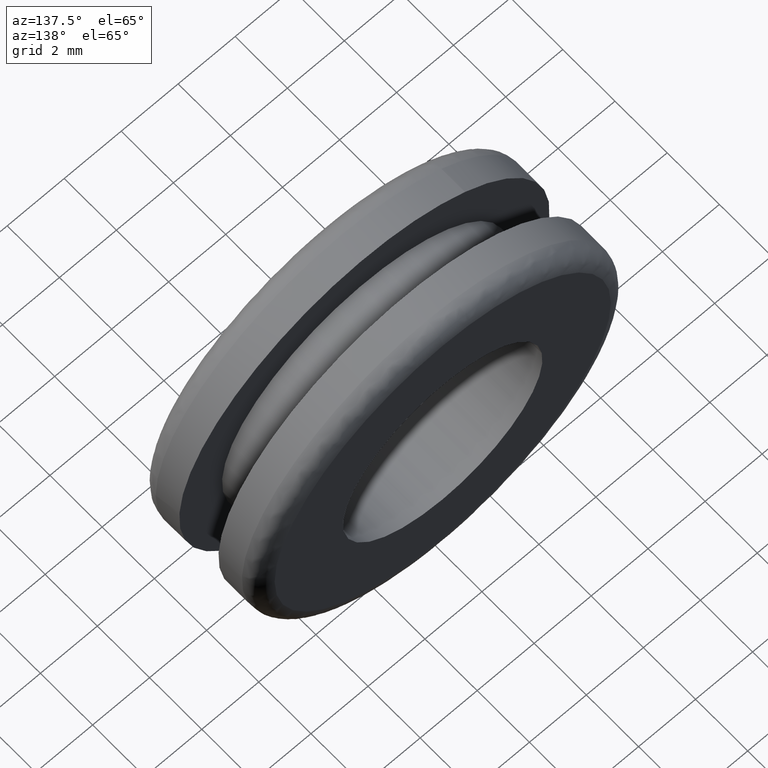
[diagram: clean part render]
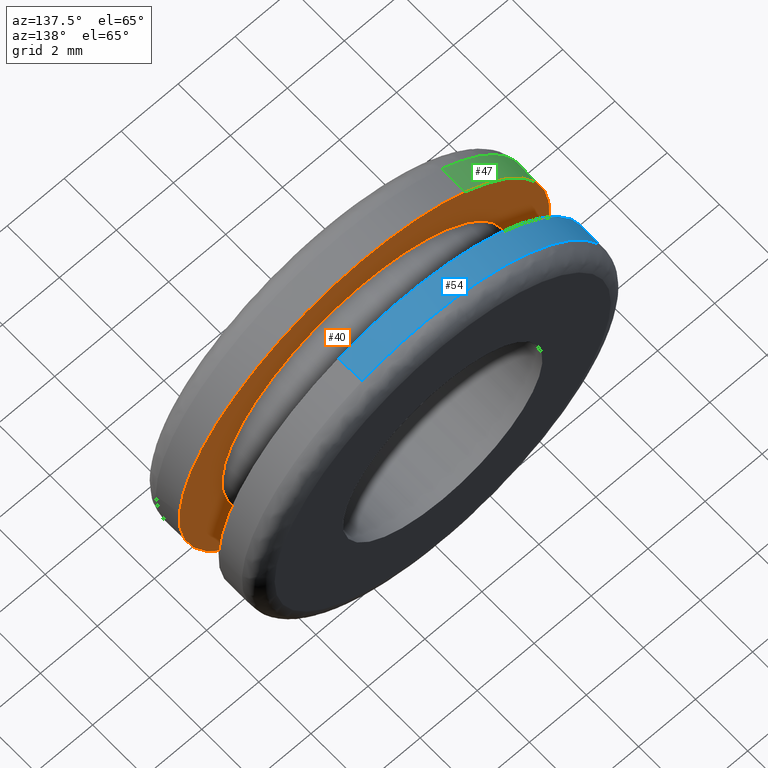
[diagram: same view with three faces highlighted in distinct colors, each labeled with its STEP entity id]
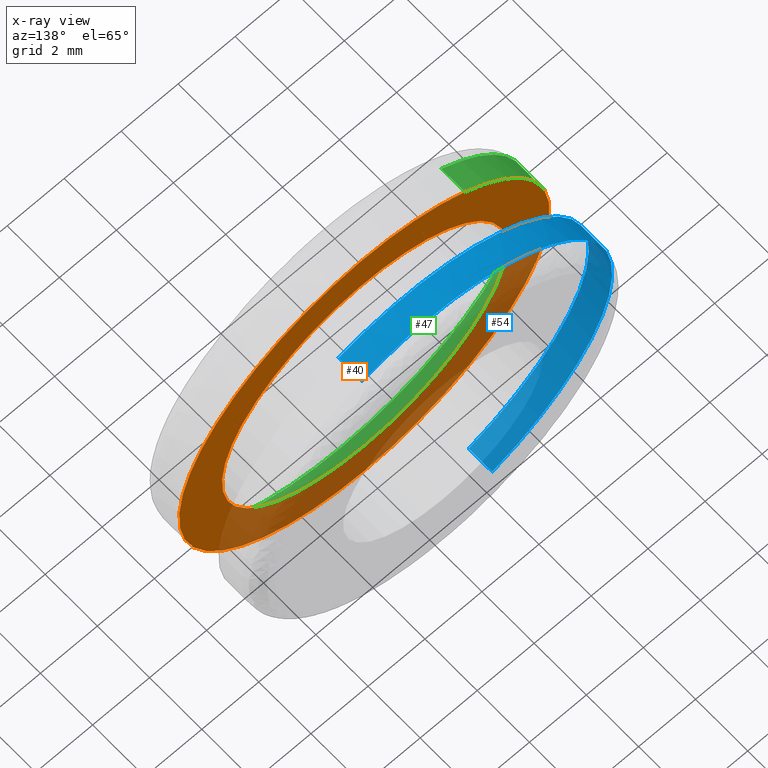
[diagram: x-ray of the same camera — body ghosted, the three highlighted faces saturated]
A machine part, auxiliary view with three faces highlighted in distinct colors.
The next image is the same camera in x-ray (body ghosted, the three faces saturated) — at least one of them is partly hidden behind the body in this view.
Their STEP definitions:

[orange] entity #40 — the highlighted planar face has unit normal (0, -1, 0).
#40=ADVANCED_FACE('',(#57,#58),#56,.F.);
#56=PLANE('',#223);
#57=FACE_OUTER_BOUND('',#224,.T.);
#58=FACE_BOUND('',#225,.T.);
#220=CARTESIAN_POINT('',(-1.35099962990E+001,1.50000000000E+000,1.49500000000E+001));
#221=DIRECTION('',(0.00000000000E+000,-1.00000000000E+000,0.00000000000E+000));
#222=DIRECTION('',(0.00000000000E+000,0.00000000000E+000,-1.00000000000E+000));
#223=AXIS2_PLACEMENT_3D('',#220,#221,#222);
#224=EDGE_LOOP('',(#388,#389,#390));
#225=EDGE_LOOP('',(#391,#392,#393));
#388=ORIENTED_EDGE('',*,*,#486,.F.);
#389=ORIENTED_EDGE('',*,*,#487,.F.);
#390=ORIENTED_EDGE('',*,*,#488,.F.);
#391=ORIENTED_EDGE('',*,*,#489,.T.);
#392=ORIENTED_EDGE('',*,*,#490,.T.);
#393=ORIENTED_EDGE('',*,*,#491,.T.);
#486=EDGE_CURVE('',#535,#536,#537,.T.);
#487=EDGE_CURVE('',#543,#535,#544,.T.);
#488=EDGE_CURVE('',#536,#543,#550,.T.);
#489=EDGE_CURVE('',#556,#557,#558,.T.);
#490=EDGE_CURVE('',#557,#564,#565,.T.);
#491=EDGE_CURVE('',#564,#556,#571,.T.);
#535=VERTEX_POINT('',#866);
#536=VERTEX_POINT('',#867);
#537=CIRCLE('',#871,6.50000000000E+000);
#543=VERTEX_POINT('',#872);
#544=CIRCLE('',#876,6.50000000000E+000);
#550=CIRCLE('',#880,6.50000000000E+000);
#556=VERTEX_POINT('',#881);
#557=VERTEX_POINT('',#882);
#558=CIRCLE('',#886,5.00000000000E+000);
#564=VERTEX_POINT('',#887);
#565=CIRCLE('',#891,5.00000000000E+000);
#571=CIRCLE('',#895,5.00000000000E+000);
#866=CARTESIAN_POINT('',(-3.52773755077E+000,1.50000000000E+000,5.45940177793E+000));
#867=CARTESIAN_POINT('',(-4.44089209850E-016,1.50000000000E+000,-6.50000000000E+000));
#868=CARTESIAN_POINT('',(1.55431223448E-015,1.50000000000E+000,3.44169137634E-015));
#869=DIRECTION('',(-2.78962807262E-017,-1.00000000000E+000,-1.80259221422E-017));
#870=DIRECTION('',(7.77156117238E-016,1.80259221422E-017,-1.00000000000E+000));
#871=AXIS2_PLACEMENT_3D('',#868,#869,#870);
#872=CARTESIAN_POINT('',(3.52938131540E+000,1.50000000000E+000,-5.45833926487E+000));
#873=CARTESIAN_POINT('',(1.55431223448E-015,1.50000000000E+000,3.44169137634E-015));
#874=DIRECTION('',(-2.78962807262E-017,-1.00000000000E+000,-1.80259221422E-017));
#875=DIRECTION('',(7.77156117238E-016,1.80259221422E-017,-1.00000000000E+000));
#876=AXIS2_PLACEMENT_3D('',#873,#874,#875);
#877=CARTESIAN_POINT('',(1.55431223448E-015,1.50000000000E+000,3.44169137634E-015));
#878=DIRECTION('',(-2.78962807262E-017,-1.00000000000E+000,-1.80259221422E-017));
#879=DIRECTION('',(7.77156117238E-016,1.80259221422E-017,-1.00000000000E+000));
#880=AXIS2_PLACEMENT_3D('',#877,#878,#879);
#881=CARTESIAN_POINT('',(-2.88657986403E-015,1.50000000000E+000,-4.99999999999E+000));
#882=CARTESIAN_POINT('',(4.96494555446E+000,1.50000000000E+000,-5.91029306600E-001));
#883=CARTESIAN_POINT('',(1.73505654288E-012,1.50000000000E+000,3.81028542051E-012));
#884=DIRECTION('',(-1.77507101533E-014,-1.00000000000E+000,-1.20365586263E-013));
#885=DIRECTION('',(-3.47250006527E-013,1.20365586263E-013,-1.00000000000E+000));
#886=AXIS2_PLACEMENT_3D('',#883,#884,#885);
#887=CARTESIAN_POINT('',(-4.96504784764E+000,1.50000000000E+000,5.90169357594E-001));
#888=CARTESIAN_POINT('',(1.73505654288E-012,1.50000000000E+000,3.81028542051E-012));
#889=DIRECTION('',(-1.77507101533E-014,-1.00000000000E+000,-1.20365586263E-013));
#890=DIRECTION('',(-3.47250006527E-013,1.20365586263E-013,-1.00000000000E+000));
#891=AXIS2_PLACEMENT_3D('',#888,#889,#890);
#892=CARTESIAN_POINT('',(1.73505654288E-012,1.50000000000E+000,3.81028542051E-012));
#893=DIRECTION('',(-1.77507101533E-014,-1.00000000000E+000,-1.20365586263E-013));
#894=DIRECTION('',(-3.47250006527E-013,1.20365586263E-013,-1.00000000000E+000));
#895=AXIS2_PLACEMENT_3D('',#892,#893,#894);

[blue] entity #54 — the highlighted cylindrical surface (partial cylindrical patch) has radius 6.5 mm, axis along (0, 1, -0).
#54=ADVANCED_FACE('',(#201),#200,.T.);
#200=CYLINDRICAL_SURFACE('',#381,6.50000000000E+000);
#201=FACE_OUTER_BOUND('',#382,.T.);
#378=CARTESIAN_POINT('',(-6.42386568763E-016,3.92250000002E+000,-2.33112350225E-017));
#379=DIRECTION('',(5.19884938187E-016,1.00000000000E+000,-4.93065979711E-017));
#380=DIRECTION('',(-3.51617974392E-001,1.36642833800E-016,-9.36143578777E-001));
#381=AXIS2_PLACEMENT_3D('',#378,#379,#380);
#382=EDGE_LOOP('',(#474,#475,#476,#477,#478,#479));
#474=ORIENTED_EDGE('',*,*,#527,.T.);
#475=ORIENTED_EDGE('',*,*,#524,.T.);
#476=ORIENTED_EDGE('',*,*,#523,.T.);
#477=ORIENTED_EDGE('',*,*,#533,.F.);
#478=ORIENTED_EDGE('',*,*,#493,.F.);
#479=ORIENTED_EDGE('',*,*,#534,.T.);
#493=EDGE_CURVE('',#578,#585,#586,.T.);
#523=EDGE_CURVE('',#791,#783,#792,.T.);
#524=EDGE_CURVE('',#798,#791,#799,.T.);
#527=EDGE_CURVE('',#817,#798,#818,.T.);
#533=EDGE_CURVE('',#585,#783,#854,.T.);
#534=EDGE_CURVE('',#578,#817,#860,.T.);
#578=VERTEX_POINT('',#897);
#585=VERTEX_POINT('',#902);
#586=CIRCLE('',#906,6.50000000000E+000);
#783=VERTEX_POINT('',#1034);
#791=VERTEX_POINT('',#1040);
#792=CIRCLE('',#1044,6.50000000000E+000);
#798=VERTEX_POINT('',#1045);
#799=CIRCLE('',#1049,6.50000000000E+000);
#817=VERTEX_POINT('',#1057);
#818=CIRCLE('',#1061,6.50000000000E+000);
#854=(BOUNDED_CURVE() B_SPLINE_CURVE(1,(#1077,#1078),.UNSPECIFIED.,.F.,.F.) B_SPLINE_CURVE_WITH_KNOTS((2,2),(8.33332935974E-002,9.16666633252E-001),.UNSPECIFIED.) CURVE() GEOMETRIC_REPRESENTATION_ITEM() RATIONAL_B_SPLINE_CURVE((1.00000000000E+000,1.00000000000E+000)) REPRESENTATION_ITEM('') );
#860=(BOUNDED_CURVE() B_SPLINE_CURVE(1,(#1079,#1080),.UNSPECIFIED.,.F.,.F.) B_SPLINE_CURVE_WITH_KNOTS((2,2),(8.33333333335E-002,9.16666666651E-001),.UNSPECIFIED.) CURVE() GEOMETRIC_REPRESENTATION_ITEM() RATIONAL_B_SPLINE_CURVE((7.50000000000E-001,7.50000000000E-001)) REPRESENTATION_ITEM('') );
#897=CARTESIAN_POINT('',(2.28512901679E+000,3.00000000000E+000,6.08507891293E+000));
#902=CARTESIAN_POINT('',(-2.28551696385E+000,3.00000000000E+000,-6.08493321310E+000));
#903=CARTESIAN_POINT('',(6.88338275268E-015,3.00000000000E+000,2.96740410022E-012));
#904=DIRECTION('',(4.37048390339E-017,-1.00000000000E+000,6.95352065091E-014));
#905=DIRECTION('',(-1.49880108324E-015,-6.95352065091E-014,-1.00000000000E+000));
#906=AXIS2_PLACEMENT_3D('',#903,#904,#905);
#1034=CARTESIAN_POINT('',(-2.28551682706E+000,3.90000000002E+000,-6.08493326448E+000));
#1040=CARTESIAN_POINT('',(-2.29646278329E+000,3.90000000002E+000,-6.08081069307E+000));
#1041=CARTESIAN_POINT('',(-6.77236045021E-014,3.90000000031E+000,-4.11226608321E-013));
#1042=DIRECTION('',(1.04039210584E-015,-1.00000000000E+000,4.69573136592E-011));
#1043=DIRECTION('',(3.53301966660E-001,4.39293729598E-011,9.35509337395E-001));
#1044=AXIS2_PLACEMENT_3D('',#1041,#1042,#1043);
#1045=CARTESIAN_POINT('',(-5.96323979441E-015,3.90000000000E+000,6.50000000000E+000));
#1046=CARTESIAN_POINT('',(1.55431223448E-014,3.90000000000E+000,2.92654789291E-012));
#1047=DIRECTION('',(5.42707238191E-016,-1.00000000000E+000,-2.03842110799E-016));
#1048=DIRECTION('',(-3.51617753693E-001,-2.46519032882E-032,-9.36143661672E-001));
#1049=AXIS2_PLACEMENT_3D('',#1046,#1047,#1048);
#1057=CARTESIAN_POINT('',(2.28650763707E+000,3.90000000000E+000,6.08456102161E+000));
#1058=CARTESIAN_POINT('',(1.55431223448E-014,3.90000000000E+000,2.92654789291E-012));
#1059=DIRECTION('',(5.42707238191E-016,-1.00000000000E+000,-2.03842110799E-016));
#1060=DIRECTION('',(-3.51617753693E-001,-2.46519032882E-032,-9.36143661672E-001));
#1061=AXIS2_PLACEMENT_3D('',#1058,#1059,#1060);
#1077=CARTESIAN_POINT('',(-2.28551683355E+000,2.99999995708E+000,-6.08493326205E+000));
#1078=CARTESIAN_POINT('',(-2.28551683355E+000,3.89999996393E+000,-6.08493326205E+000));
#1079=CARTESIAN_POINT('',(2.28551683355E+000,3.00000000000E+000,6.08493326205E+000));
#1080=CARTESIAN_POINT('',(2.28551683355E+000,3.90000000000E+000,6.08493326205E+000));

[green] entity #47 — the highlighted cylindrical surface (partial cylindrical patch) has radius 6.5 mm, axis along (-0, 1, -0).
#47=ADVANCED_FACE('',(#131),#130,.T.);
#130=CYLINDRICAL_SURFACE('',#262,6.50000000000E+000);
#131=FACE_OUTER_BOUND('',#263,.T.);
#259=CARTESIAN_POINT('',(-1.45266011121E-016,1.52250000000E+000,-9.82045915307E-016));
#260=DIRECTION('',(-3.07258401458E-016,1.00000000000E+000,-1.98543185887E-016));
#261=DIRECTION('',(-5.42728861529E-001,-0.00000000000E+000,8.39907960948E-001));
#262=AXIS2_PLACEMENT_3D('',#259,#260,#261);
#263=EDGE_LOOP('',(#429,#430,#431,#432,#433,#434,#435,#436));
#429=ORIENTED_EDGE('',*,*,#518,.F.);
#430=ORIENTED_EDGE('',*,*,#519,.F.);
#431=ORIENTED_EDGE('',*,*,#520,.F.);
#432=ORIENTED_EDGE('',*,*,#521,.F.);
#433=ORIENTED_EDGE('',*,*,#512,.T.);
#434=ORIENTED_EDGE('',*,*,#486,.T.);
#435=ORIENTED_EDGE('',*,*,#488,.T.);
#436=ORIENTED_EDGE('',*,*,#517,.F.);
#486=EDGE_CURVE('',#535,#536,#537,.T.);
#488=EDGE_CURVE('',#536,#543,#550,.T.);
#512=EDGE_CURVE('',#715,#535,#716,.T.);
#517=EDGE_CURVE('',#743,#543,#750,.T.);
#518=EDGE_CURVE('',#756,#743,#757,.T.);
#519=EDGE_CURVE('',#763,#756,#764,.T.);
#520=EDGE_CURVE('',#770,#763,#771,.T.);
#521=EDGE_CURVE('',#715,#770,#777,.T.);
#535=VERTEX_POINT('',#866);
#536=VERTEX_POINT('',#867);
#537=CIRCLE('',#871,6.50000000000E+000);
#543=VERTEX_POINT('',#872);
#550=CIRCLE('',#880,6.50000000000E+000);
#715=VERTEX_POINT('',#990);
#716=(BOUNDED_CURVE() B_SPLINE_CURVE(1,(#991,#992),.UNSPECIFIED.,.F.,.F.) B_SPLINE_CURVE_WITH_KNOTS((2,2),(8.33333730703E-002,9.16666640476E-001),.UNSPECIFIED.) CURVE() GEOMETRIC_REPRESENTATION_ITEM() RATIONAL_B_SPLINE_CURVE((1.00000000000E+000,1.00000000000E+000)) REPRESENTATION_ITEM('') );
#743=VERTEX_POINT('',#1008);
#750=(BOUNDED_CURVE() B_SPLINE_CURVE(1,(#1013,#1014),.UNSPECIFIED.,.F.,.F.) B_SPLINE_CURVE_WITH_KNOTS((2,2),(8.33333334503E-002,9.16666666667E-001),.UNSPECIFIED.) CURVE() GEOMETRIC_REPRESENTATION_ITEM() RATIONAL_B_SPLINE_CURVE((7.50000000000E-001,7.50000000000E-001)) REPRESENTATION_ITEM('') );
#756=VERTEX_POINT('',#1015);
#757=CIRCLE('',#1019,6.49999977607E+000);
#763=VERTEX_POINT('',#1020);
#764=CIRCLE('',#1024,6.50000045126E+000);
#770=VERTEX_POINT('',#1025);
#771=CIRCLE('',#1029,6.50000045126E+000);
#777=CIRCLE('',#1033,6.50000000000E+000);
#866=CARTESIAN_POINT('',(-3.52773755077E+000,1.50000000000E+000,5.45940177793E+000));
#867=CARTESIAN_POINT('',(-4.44089209850E-016,1.50000000000E+000,-6.50000000000E+000));
#868=CARTESIAN_POINT('',(1.55431223448E-015,1.50000000000E+000,3.44169137634E-015));
#869=DIRECTION('',(-2.78962807262E-017,-1.00000000000E+000,-1.80259221422E-017));
#870=DIRECTION('',(7.77156117238E-016,1.80259221422E-017,-1.00000000000E+000));
#871=AXIS2_PLACEMENT_3D('',#868,#869,#870);
#872=CARTESIAN_POINT('',(3.52938131540E+000,1.50000000000E+000,-5.45833926487E+000));
#877=CARTESIAN_POINT('',(1.55431223448E-015,1.50000000000E+000,3.44169137634E-015));
#878=DIRECTION('',(-2.78962807262E-017,-1.00000000000E+000,-1.80259221422E-017));
#879=DIRECTION('',(7.77156117238E-016,1.80259221422E-017,-1.00000000000E+000));
#880=AXIS2_PLACEMENT_3D('',#877,#878,#879);
#990=CARTESIAN_POINT('',(-3.52773760156E+000,5.99999999992E-001,5.45940174511E+000));
#991=CARTESIAN_POINT('',(-3.52773759994E+000,6.00000042872E-001,5.45940174616E+000));
#992=CARTESIAN_POINT('',(-3.52773759994E+000,1.49999997171E+000,5.45940174616E+000));
#1008=CARTESIAN_POINT('',(3.52785487231E+000,5.99999999993E-001,-5.45932596571E+000));
#1013=CARTESIAN_POINT('',(3.52773759994E+000,6.00000000082E-001,-5.45940174616E+000));
#1014=CARTESIAN_POINT('',(3.52773759994E+000,1.50000000000E+000,-5.45940174616E+000));
#1015=CARTESIAN_POINT('',(-5.01556009669E+000,6.00000000000E-001,-4.13450806221E+000));
#1016=CARTESIAN_POINT('',(2.22402359640E-007,5.99999999956E-001,-1.22900081223E-007));
#1017=DIRECTION('',(6.65788021355E-016,-1.00000000000E+000,-6.83520549727E-012));
#1018=DIRECTION('',(-5.42728813757E-001,-5.74130506521E-012,8.39907991817E-001));
#1019=AXIS2_PLACEMENT_3D('',#1016,#1017,#1018);
#1020=CARTESIAN_POINT('',(-6.49999998854E+000,6.00000000043E-001,4.61317729425E-014));
#1021=CARTESIAN_POINT('',(4.62711542859E-007,5.99999999678E-001,1.48121074739E-007));
#1022=DIRECTION('',(-5.61175792301E-011,-1.00000000000E+000,-1.89873077435E-010));
#1023=DIRECTION('',(9.97565675772E-001,-4.27405090171E-011,-6.97332239468E-002));
#1024=AXIS2_PLACEMENT_3D('',#1021,#1022,#1023);
#1025=CARTESIAN_POINT('',(-6.48417687996E+000,5.99999999956E-001,4.53266135243E-001));
#1026=CARTESIAN_POINT('',(4.62711542859E-007,5.99999999678E-001,1.48121074739E-007));
#1027=DIRECTION('',(-5.61175792301E-011,-1.00000000000E+000,-1.89873077435E-010));
#1028=DIRECTION('',(9.97565675772E-001,-4.27405090171E-011,-6.97332239468E-002));
#1029=AXIS2_PLACEMENT_3D('',#1026,#1027,#1028);
#1030=CARTESIAN_POINT('',(1.29052324382E-012,5.99999999953E-001,-1.38067335342E-012));
#1031=DIRECTION('',(-6.03881714948E-018,-1.00000000000E+000,7.25464133211E-012));
#1032=DIRECTION('',(1.98542037511E-013,-7.25464133211E-012,-1.00000000000E+000));
#1033=AXIS2_PLACEMENT_3D('',#1030,#1031,#1032);